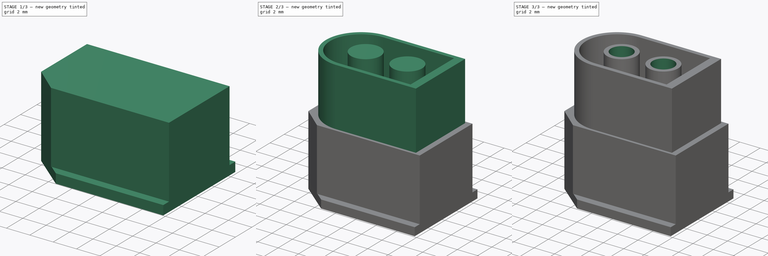
[diagram: build sequence overview — one tinted view per stage of 3, left to right]
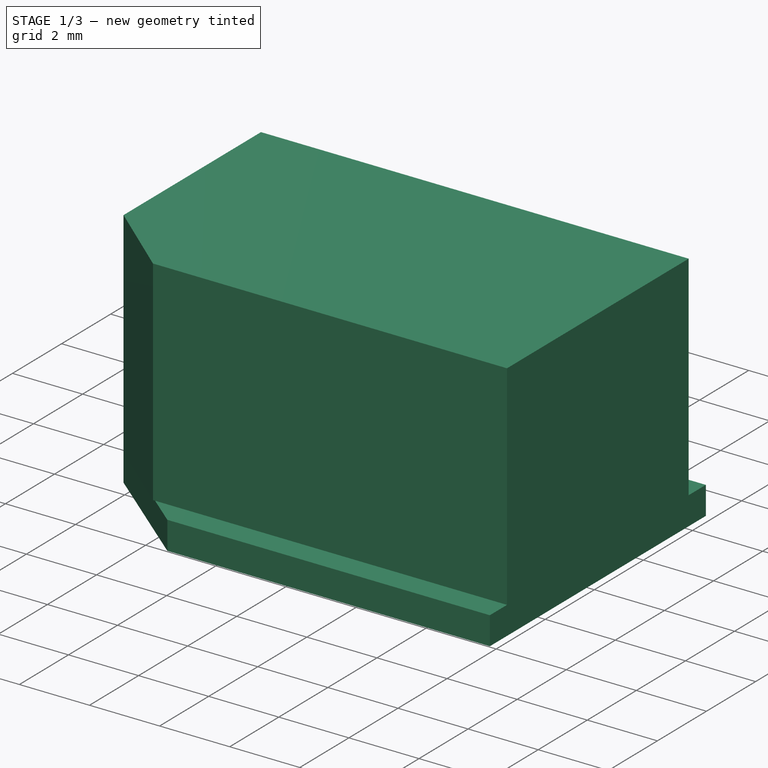
[diagram: stage 1 of 3 — iso view after this stage's code; geometry added in this stage tinted green]
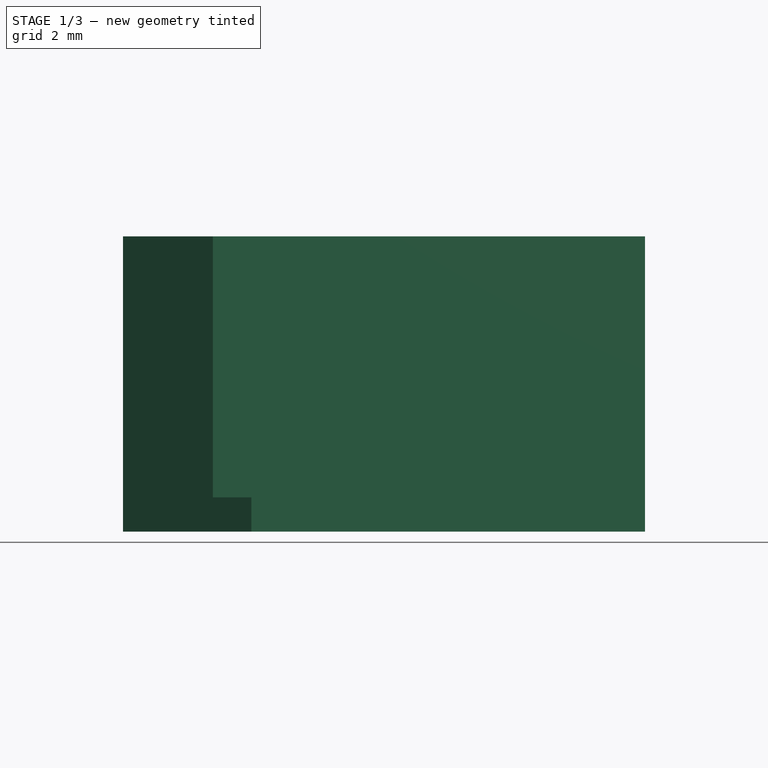
[diagram: stage 1 of 3 — front view after this stage's code; geometry added in this stage tinted green]
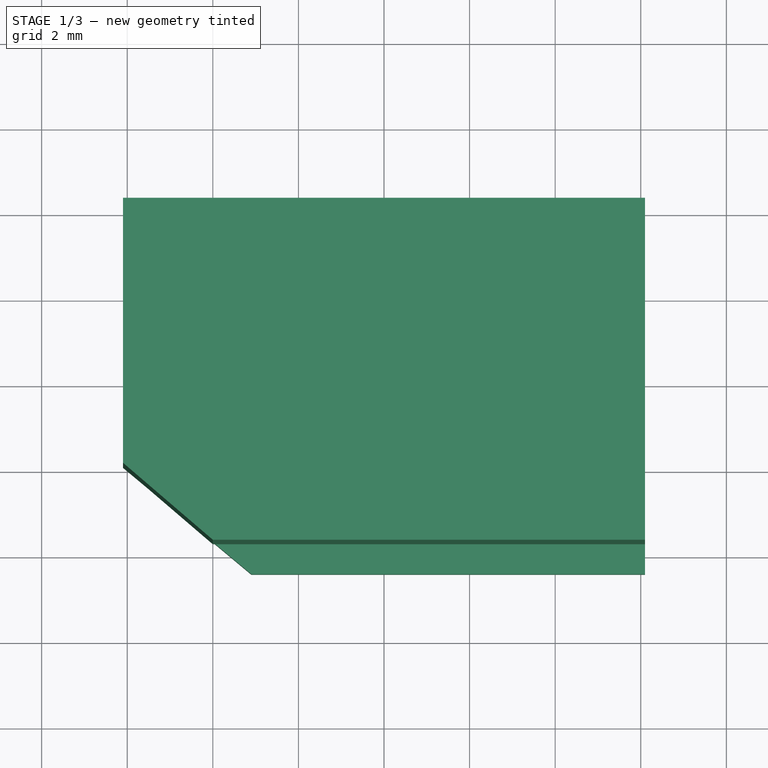
[diagram: stage 1 of 3 — top view after this stage's code; geometry added in this stage tinted green]
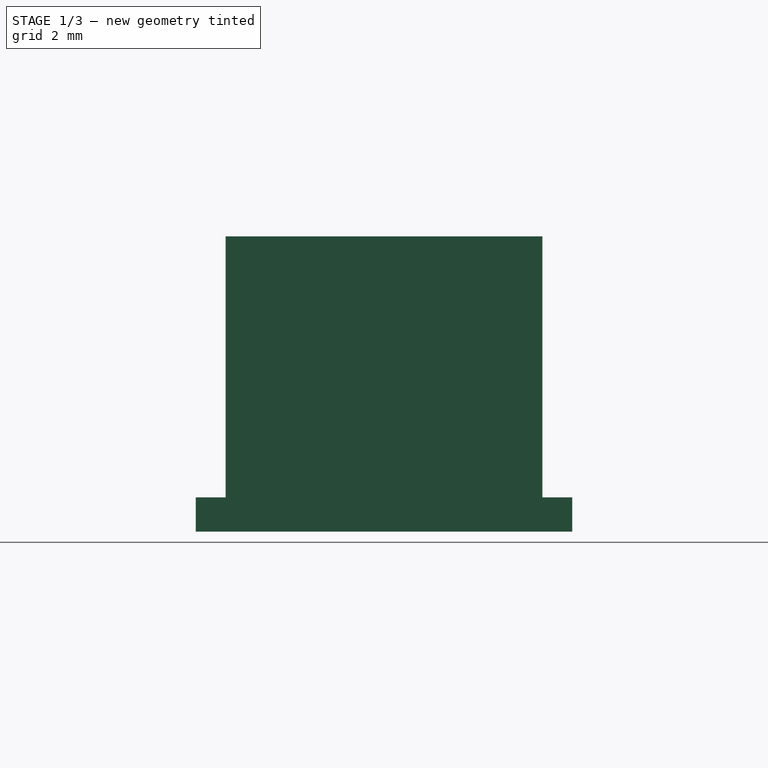
[diagram: stage 1 of 3 — right view after this stage's code; geometry added in this stage tinted green]
FCSTD DOCUMENT  (FreeCAD 2022.1128R26244 +5318 (Git))
Label: Wii2GC
License: All rights reserved
LicenseURL: http://en.wikipedia.org/wiki/All_rights_reserved
objects: Sketcher::SketchObject×8, PartDesign::SubShapeBinder×6, PartDesign::Pad×4, PartDesign::Pocket×3, Spreadsheet::Sheet×1, PartDesign::Body×1
note: 44 computed .brp shape members not serialized (recipe doc carries the construction recipe); baked Part::Feature solids carry a one-line shape summary decoded from their .brp

FEATURE [Spreadsheet::Sheet] Spreadsheet  label="Dimensions"
  PythonMode = false
  ShowCells = 0
  TreeRank = 1
  cells = A1=Base (Lock); B1=Dimensions; C1=Used?; A2=Top; B2(basetop)=12.2; C2=Yes; A3=Bottom; B3(basebottom)=9.199999999999999; C3=Yes; A4=Left; B4(baseleft)=6.3; C4=Yes; A5=Right; B5(baseright)=8.800000000000001; C5=Yes; A6=Height; B6(baseheight)=0.8; C6=Yes; A7=Circle; B7(basecircle)=4.3; C7=Yes; A8=Square; B8(basesquare)=2.5; C8=Yes; A9=Socket Height; B9(basesocketheight)=0; C9=No; A10=Body (Wii); A11=Top; B11(bodytop)=12.2; C11=Yes; A12=Bottom; B12(bodybottom)=10.1; C12=Yes; A13=Left; B13(bodyleft)=5.6; C13=Yes; A14=Right; B14(bodyright)=7.4; C14=Yes; A15=Height; B15(bodyheight)=6.1; C15=Yes; A16=Plug (GameCube); A17=Outside Lenght; B17(plugoutsidelenght)=11.1; C17=Yes; A18=Inside Lenght; B18(pluginsidelenght)=9.5; C18=Yes; A19=Outside Width; B19(plugoutsidewidth)=6.9; C19=Yes; A20=Inside Width; B20(pluginsidewidth)=6.1; C20=Yes; A21=Outside Straight; B21(plugoutsidestraight)=7.8; C21=Yes; A22=Inside Straight; B22(pluginsidestraight)=7; C22=Yes; A23=Circle Distance; B23(plugcircledistance)=1; C23=Yes; A24=Outside Circle; B24(plugoutsidecircle)=2.9; C24=Yes; A25=Inside Circle; B25(pluginsidecircle)=2.1; C25=Yes; A26=Circle Gap; B26(plugcirclegap)=1.2; C26=Yes; A27=Height; B27(plugheight)=5.7; C27=Yes
FEATURE [Sketcher::SketchObject] Sketch
  ArcFitTolerance = 1e-06
  ExternalBSplineMaxDegree = 5
  ExternalBSplineTolerance = 0.0001
  FullyConstrained = true
  InternalTolerance = 1e-06
  MakeInternals = false
  TreeRank = 2
  expr: Placement.Base.z = <<Dimensions>>.basesocketheight
  expr: Constraints[10] = <<Dimensions>>.basebottom
  expr: Constraints[11] = <<Dimensions>>.basetop / 2
  expr: Constraints[12] = <<Dimensions>>.baseright / 2
  expr: Constraints[7] = <<Dimensions>>.basetop
  expr: Constraints[8] = <<Dimensions>>.baseright
  expr: Constraints[9] = <<Dimensions>>.baseleft
  sketch-geometry (5):
    g0: LineSegment StartX=-6.1 StartY=4.4 StartZ=0 EndX=6.1 EndY=4.4 EndZ=0
    g1: LineSegment StartX=6.1 StartY=4.4 StartZ=0 EndX=6.1 EndY=-4.4 EndZ=0
    g2: LineSegment StartX=6.1 StartY=-4.4 StartZ=0 EndX=-3.1 EndY=-4.4 EndZ=0
    g3: LineSegment StartX=-6.1 StartY=4.4 StartZ=0 EndX=-6.1 EndY=-1.9 EndZ=0
    g4: LineSegment StartX=-3.1 StartY=-4.4 StartZ=0 EndX=-6.1 EndY=-1.9 EndZ=0
  constraints (15):
    c: Horizontal(g0)
    c: Vertical(g1)
    c: Horizontal(g2)
    c: Vertical(g3)
    c: Coincident(g3,g0)
    c: Coincident(g1,g0)
    c: Coincident(g2,g1)
    c: DistanceX(g0,g0) = 12.2
    c: DistanceY(g1,g1) = 8.8
    c: DistanceY(g3,g3) = 6.3
    c: DistanceX(g2,g2) = 9.2
    c: DistanceX(g-1,g0) = 6.1
    c: DistanceY(g1,g-1) = 4.4
    c: Coincident(g4,g3)
    c: Coincident(g4,g2)
FEATURE [PartDesign::Pad] Pad  label="Base(Lock)"
  AddSubType = 0
  AlongSketchNormal = false
  AutoTaperInnerAngle = true
  CheckUpToFaceLimits = true
  ClaimChildren = false
  Direction = (0,0,1)
  Fit = 0
  FitJoin = 0
  InnerFit = 0
  InnerFitJoin = 0
  Length = 0.8
  Length2 = 100
  Linearize = true
  NewSolid = false
  Profile = -> Sketch
  Refine = true
  Suppress = false
  TaperInnerAngle = 0
  TaperInnerAngleRev = 0
  TreeRank = 13
  Type = 0
  _ProfileBasedVersion = 1
  expr: Length = <<Dimensions>>.baseheight
FEATURE [Sketcher::SketchObject] Sketch001  label="Body(Wii) Sketch"
  ArcFitTolerance = 1e-06
  ExternalBSplineMaxDegree = 5
  ExternalBSplineTolerance = 0.0001
  FullyConstrained = true
  InternalTolerance = 1e-06
  MakeInternals = false
  Placement = pos=(0,0,0.8) rot=(0,0,1;0rad)
  TreeRank = 14
  expr: Placement.Base.z = <<Dimensions>>.baseheight + <<Dimensions>>.basesocketheight
  expr: Constraints[10] = <<Dimensions>>.bodyleft
  expr: Constraints[11] = <<Dimensions>>.bodytop / 2
  expr: Constraints[12] = <<Dimensions>>.bodyright / 2
  expr: Constraints[7] = <<Dimensions>>.bodytop
  expr: Constraints[8] = <<Dimensions>>.bodybottom
  expr: Constraints[9] = <<Dimensions>>.bodyright
  sketch-geometry (5):
    g0: LineSegment StartX=6.1 StartY=3.7 StartZ=0 EndX=-6.1 EndY=3.7 EndZ=0
    g1: LineSegment StartX=6.1 StartY=3.7 StartZ=0 EndX=6.1 EndY=-3.7 EndZ=0
    g2: LineSegment StartX=6.1 StartY=-3.7 StartZ=0 EndX=-4 EndY=-3.7 EndZ=0
    g3: LineSegment StartX=-6.1 StartY=3.7 StartZ=0 EndX=-6.1 EndY=-1.9 EndZ=0
    g4: LineSegment StartX=-4 StartY=-3.7 StartZ=0 EndX=-6.1 EndY=-1.9 EndZ=0
  constraints (15):
    c: Horizontal(g0)
    c: Vertical(g1)
    c: Horizontal(g2)
    c: Vertical(g3)
    c: Coincident(g1,g0)
    c: Coincident(g2,g1)
    c: Coincident(g3,g0)
    c: DistanceX(g0,g0) = 12.2
    c: DistanceX(g2,g2) = 10.1
    c: DistanceY(g1,g1) = 7.4
    c: DistanceY(g3,g3) = 5.6
    c: DistanceX(g-1,g0) = 6.1
    c: DistanceY(g1,g-1) = 3.7
    c: Coincident(g4,g2)
    c: Coincident(g4,g3)
FEATURE [PartDesign::SubShapeBinder] Pad001_Profile  label="Pad001_Profile(Body(Wii) Sketch)"
  BindCopyOnChange = 0
  BindMode = 0
  ClaimChildren = false
  Context = -> Body [Pad001.Pad001_Profile.]
  EdgeTolerance = 1e-06
  FillStyle = 0
  Fuse = false
  MakeFace = true
  MergeEdges = true
  OffsetFill = false
  OffsetIntersection = false
  OffsetJoinType = 0
  OffsetOpenResult = false
  Outline = false
  PartialLoad = false
  Relative = true
  SplitEdges = false
  Support = -> [Sketch001]
  TightBound = false
  TreeRank = 16
  _Version = 8
FEATURE [PartDesign::Pad] Pad001  label="Body(Wii)"
  AddSubType = 0
  AlongSketchNormal = false
  AutoTaperInnerAngle = true
  BaseFeature = -> Pad
  CheckUpToFaceLimits = true
  ClaimChildren = false
  Direction = (0,0,1)
  Fit = 0
  FitJoin = 0
  InnerFit = 0
  InnerFitJoin = 0
  Length = 6.1
  Length2 = 100
  Linearize = true
  NewSolid = false
  Profile = -> Pad001_Profile
  Refine = true
  Suppress = false
  TaperInnerAngle = 0
  TaperInnerAngleRev = 0
  TreeRank = 15
  Type = 0
  _ProfileBasedVersion = 1
  expr: Length = <<Dimensions>>.bodyheight
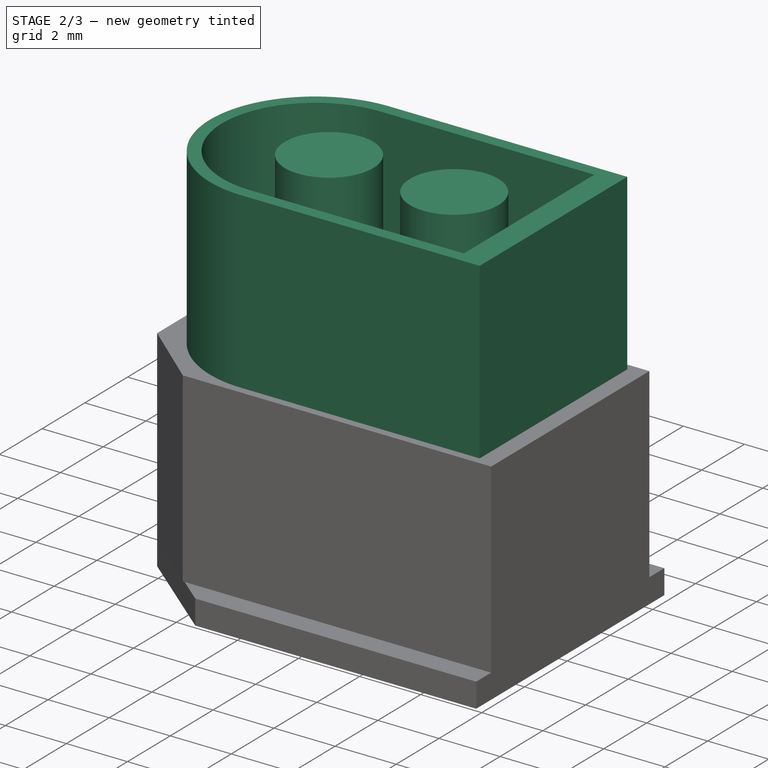
[diagram: stage 2 of 3 — iso view after this stage's code; geometry added in this stage tinted green]
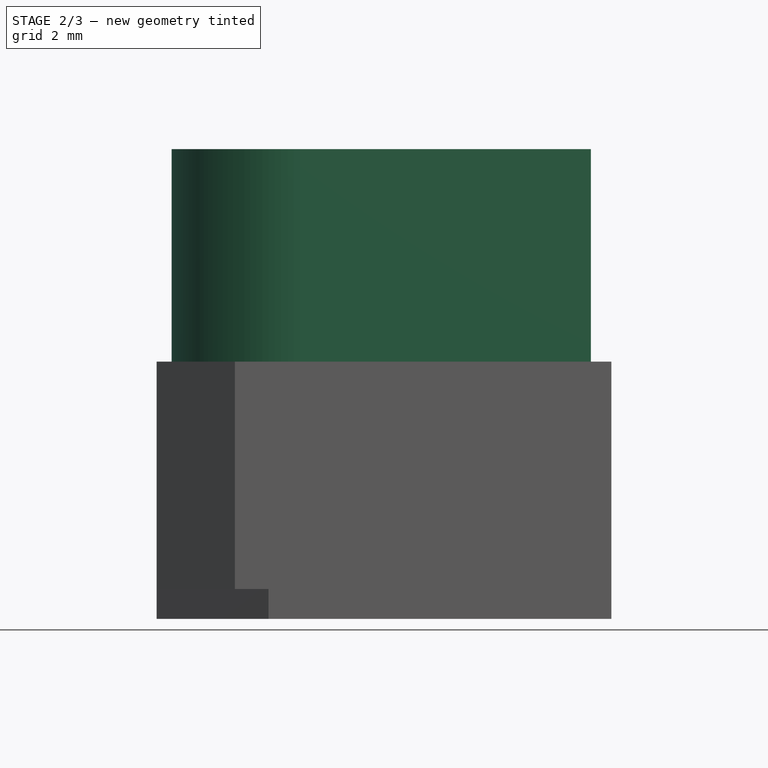
[diagram: stage 2 of 3 — front view after this stage's code; geometry added in this stage tinted green]
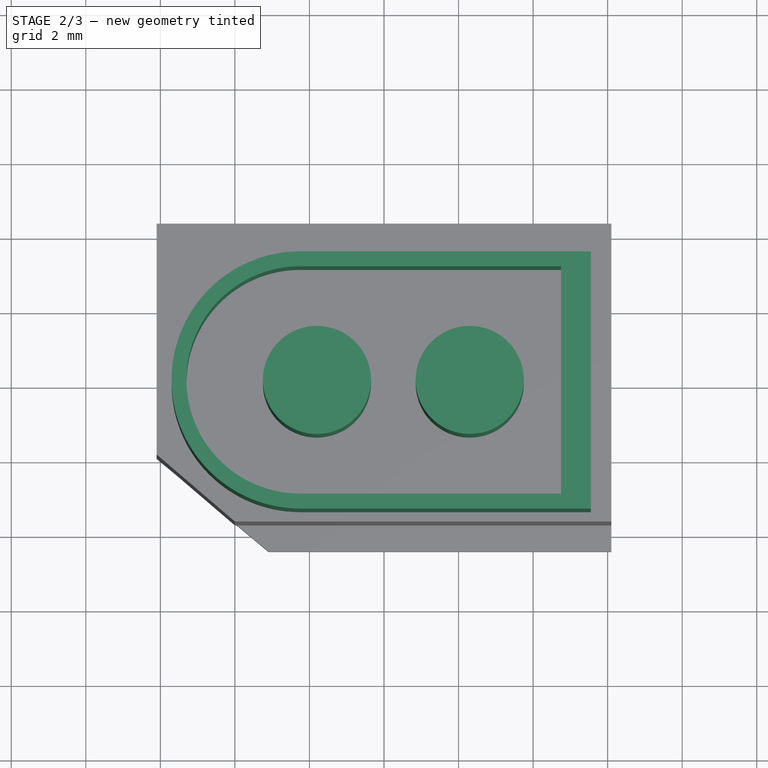
[diagram: stage 2 of 3 — top view after this stage's code; geometry added in this stage tinted green]
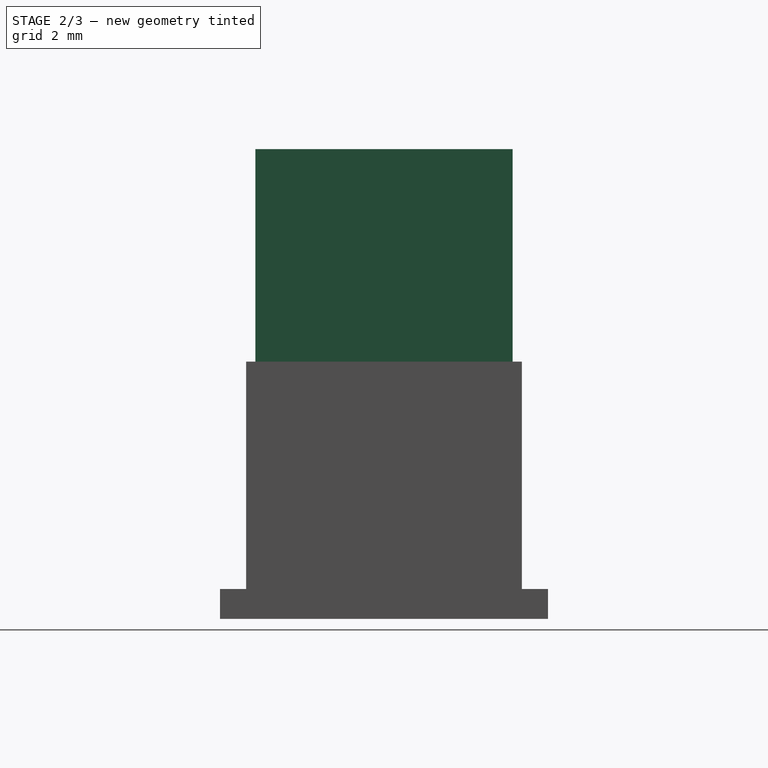
[diagram: stage 2 of 3 — right view after this stage's code; geometry added in this stage tinted green]
FEATURE [Sketcher::SketchObject] Sketch002  label="Plug(GameCube) Sketch"
  ArcFitTolerance = 1e-06
  ExternalBSplineMaxDegree = 5
  ExternalBSplineTolerance = 0.0001
  FullyConstrained = true
  InternalTolerance = 1e-06
  MakeInternals = false
  Placement = pos=(0,0,6.9) rot=(0,0,1;0rad)
  TreeRank = 17
  expr: Placement.Base.z = <<Dimensions>>.baseheight + <<Dimensions>>.bodyheight + <<Dimensions>>.basesocketheight
  expr: Constraints[12] = <<Dimensions>>.plugoutsidestraight - <<Dimensions>>.plugoutsidelenght / 2
  expr: Constraints[5] = <<Dimensions>>.plugoutsidestraight
  expr: Constraints[6] = <<Dimensions>>.plugoutsidestraight
  expr: Constraints[7] = <<Dimensions>>.plugoutsidewidth
  expr: Constraints[8] = <<Dimensions>>.plugoutsidewidth / 2
  expr: Constraints[9] = <<Dimensions>>.plugoutsidelenght / 2
  sketch-geometry (4):
    g0: LineSegment StartX=-2.25 StartY=3.45 StartZ=0 EndX=5.55 EndY=3.45 EndZ=0
    g1: LineSegment StartX=5.55 StartY=3.45 StartZ=0 EndX=5.55 EndY=-3.45 EndZ=0
    g2: LineSegment StartX=5.55 StartY=-3.45 StartZ=0 EndX=-2.25 EndY=-3.45 EndZ=0
    g3: ArcOfCircle CenterX=-2.25 CenterY=0 CenterZ=0 NormalX=0 NormalY=0 NormalZ=1 AngleXU=0 Radius=3.45 StartAngle=1.5708 EndAngle=4.71239
  constraints (13):
    c: Horizontal(g0)
    c: Vertical(g1)
    c: Horizontal(g2)
    c: Coincident(g2,g1)
    c: Coincident(g0,g1)
    c: DistanceX(g0,g0) = 7.8
    c: DistanceX(g2,g2) = 7.8
    c: DistanceY(g1,g1) = 6.9
    c: DistanceY(g1,g-1) = 3.45
    c: DistanceX(g-1,g0) = 5.55
    c: Coincident(g3,g2)
    c: Coincident(g3,g0)
    c: DistanceX(g3,g-1) = 2.25
FEATURE [PartDesign::SubShapeBinder] Pad002_Profile  label="Pad002_Profile(Plug(GameCube) Sketch)"
  BindCopyOnChange = 0
  BindMode = 0
  ClaimChildren = false
  Context = -> Body [Pad002_Profile.]
  EdgeTolerance = 1e-06
  FillStyle = 0
  Fuse = false
  MakeFace = true
  MergeEdges = true
  OffsetFill = false
  OffsetIntersection = false
  OffsetJoinType = 0
  OffsetOpenResult = false
  Outline = false
  PartialLoad = false
  Relative = true
  SplitEdges = false
  Support = -> [Sketch002]
  TightBound = false
  TreeRank = 19
  _Version = 8
FEATURE [PartDesign::Pad] Pad002  label="Plug (GameCube)"
  AddSubType = 0
  AlongSketchNormal = false
  AutoTaperInnerAngle = true
  BaseFeature = -> Pad001
  CheckUpToFaceLimits = true
  ClaimChildren = false
  Direction = (0,0,1)
  Fit = 0
  FitJoin = 0
  InnerFit = 0
  InnerFitJoin = 0
  Length = 5.7
  Length2 = 100
  Linearize = true
  NewSolid = false
  Profile = -> Pad002_Profile
  Refine = true
  Suppress = false
  TaperInnerAngle = 0
  TaperInnerAngleRev = 0
  TreeRank = 18
  Type = 0
  _ProfileBasedVersion = 1
  expr: Length = <<Dimensions>>.plugheight
FEATURE [Sketcher::SketchObject] Sketch003  label="Plug Hole Sketch"
  ArcFitTolerance = 1e-06
  ExternalBSplineMaxDegree = 5
  ExternalBSplineTolerance = 0.0001
  FullyConstrained = true
  InternalTolerance = 1e-06
  MakeInternals = false
  Placement = pos=(0,0,12.6) rot=(0,0,1;0rad)
  TreeRank = 20
  expr: Placement.Base.z = <<Dimensions>>.basesocketheight + <<Dimensions>>.baseheight + <<Dimensions>>.bodyheight + <<Dimensions>>.plugheight
  expr: Constraints[5] = <<Dimensions>>.pluginsidestraight
  expr: Constraints[6] = <<Dimensions>>.pluginsidestraight
  expr: Constraints[7] = <<Dimensions>>.pluginsidewidth
  expr: Constraints[8] = <<Dimensions>>.pluginsidewidth / 2
  expr: Constraints[9] = <<Dimensions>>.pluginsidelenght / 2
  sketch-geometry (4):
    g0: LineSegment StartX=-2.25 StartY=3.05 StartZ=0 EndX=4.75 EndY=3.05 EndZ=0
    g1: LineSegment StartX=4.75 StartY=3.05 StartZ=0 EndX=4.75 EndY=-3.05 EndZ=0
    g2: LineSegment StartX=4.75 StartY=-3.05 StartZ=0 EndX=-2.25 EndY=-3.05 EndZ=0
    g3: ArcOfCircle CenterX=-2.25 CenterY=-1e-16 CenterZ=0 NormalX=0 NormalY=0 NormalZ=1 AngleXU=0 Radius=3.05 StartAngle=1.5708 EndAngle=4.71239
  constraints (13):
    c: Horizontal(g0)
    c: Vertical(g1)
    c: Horizontal(g2)
    c: Coincident(g0,g1)
    c: Coincident(g2,g1)
    c: DistanceX(g0,g0) = 7
    c: DistanceX(g2,g2) = 7
    c: DistanceY(g1,g1) = 6.1
    c: DistanceY(g-1,g0) = 3.05
    c: DistanceX(g-1,g0) = 4.75
    c: Coincident(g3,g2)
    c: Coincident(g3,g0)
    c: DistanceX(g3,g-1) = 2.25
FEATURE [PartDesign::SubShapeBinder] Pocket_Profile  label="Pocket_Profile(Plug Hole Sketch)"
  BindCopyOnChange = 0
  BindMode = 0
  ClaimChildren = false
  Context = -> Body [Pocket_Profile.]
  EdgeTolerance = 1e-06
  FillStyle = 0
  Fuse = false
  MakeFace = true
  MergeEdges = true
  OffsetFill = false
  OffsetIntersection = false
  OffsetJoinType = 0
  OffsetOpenResult = false
  Outline = false
  PartialLoad = false
  Relative = true
  SplitEdges = false
  Support = -> [Sketch003]
  TightBound = false
  TreeRank = 22
  _Version = 8
FEATURE [PartDesign::Pocket] Pocket  label="Plug Hole"
  AddSubType = 1
  AutoTaperInnerAngle = true
  BaseFeature = -> Pad002
  CheckUpToFaceLimits = true
  ClaimChildren = false
  Fit = 0
  FitJoin = 0
  InnerFit = 0
  InnerFitJoin = 0
  Length = 5.7
  Length2 = 100
  Linearize = true
  NewSolid = false
  Profile = -> Pocket_Profile
  Refine = true
  Suppress = false
  TaperInnerAngle = 0
  TaperInnerAngleRev = 0
  TreeRank = 21
  Type = 0
  _ProfileBasedVersion = 1
  _Version = 1
  expr: Length = <<Dimensions>>.plugheight
FEATURE [Sketcher::SketchObject] Sketch004  label="Plug Sockets Sketch"
  ArcFitTolerance = 1e-06
  ExternalBSplineMaxDegree = 5
  ExternalBSplineTolerance = 0.0001
  FullyConstrained = true
  InternalTolerance = 1e-06
  MakeInternals = false
  Placement = pos=(0,0,6.9) rot=(0,0,1;0rad)
  TreeRank = 23
  expr: Placement.Base.z = <<Dimensions>>.baseheight + <<Dimensions>>.bodyheight + <<Dimensions>>.basesocketheight
  expr: Constraints[1] = <<Dimensions>>.pluginsidelenght / 2
  expr: Constraints[3] = <<Dimensions>>.plugcircledistance + <<Dimensions>>.plugoutsidecircle / 2
  expr: Constraints[4] = <<Dimensions>>.plugoutsidecircle
  expr: Constraints[5] = <<Dimensions>>.plugoutsidecircle
  expr: Constraints[6] = <<Dimensions>>.plugoutsidecircle + <<Dimensions>>.plugcirclegap
  sketch-geometry (3):
    g0: GeomPoint [constr] X=4.75 Y=0 Z=0
    g1: Circle CenterX=2.3 CenterY=0 CenterZ=0 NormalX=0 NormalY=0 NormalZ=1 AngleXU=0 Radius=1.45
    g2: Circle CenterX=-1.8 CenterY=0 CenterZ=0 NormalX=0 NormalY=0 NormalZ=1 AngleXU=0 Radius=1.45
  constraints (8):
    c: Horizontal(g-1,g0)
    c: DistanceX(g-1,g0) = 4.75
    c: Horizontal(g1,g-1)
    c: DistanceX(g1,g0) = 2.45
    c: Diameter(g1) = 2.9
    c: Diameter(g2) = 2.9
    c: DistanceX(g2,g1) = 4.1
    c: Horizontal(g2,g-1)
FEATURE [PartDesign::SubShapeBinder] Pad003_Profile  label="Pad003_Profile(Plug Sockets Sketch)"
  BindCopyOnChange = 0
  BindMode = 0
  ClaimChildren = false
  Context = -> Body [Pad003_Profile.]
  EdgeTolerance = 1e-06
  FillStyle = 0
  Fuse = false
  MakeFace = true
  MergeEdges = true
  OffsetFill = false
  OffsetIntersection = false
  OffsetJoinType = 0
  OffsetOpenResult = false
  Outline = false
  PartialLoad = false
  Relative = true
  SplitEdges = false
  Support = -> [Sketch004]
  TightBound = false
  TreeRank = 25
  _Version = 8
FEATURE [PartDesign::Pad] Pad003  label="Plug Sockets"
  AddSubType = 0
  AlongSketchNormal = false
  AutoTaperInnerAngle = true
  BaseFeature = -> Pocket
  CheckUpToFaceLimits = true
  ClaimChildren = false
  Direction = (0,0,1)
  Fit = 0
  FitJoin = 0
  InnerFit = 0
  InnerFitJoin = 0
  Length = 5.7
  Length2 = 100
  Linearize = true
  NewSolid = false
  Profile = -> Pad003_Profile
  Refine = true
  Suppress = false
  TaperInnerAngle = 0
  TaperInnerAngleRev = 0
  TreeRank = 24
  Type = 0
  _ProfileBasedVersion = 1
  expr: Length = <<Dimensions>>.plugheight
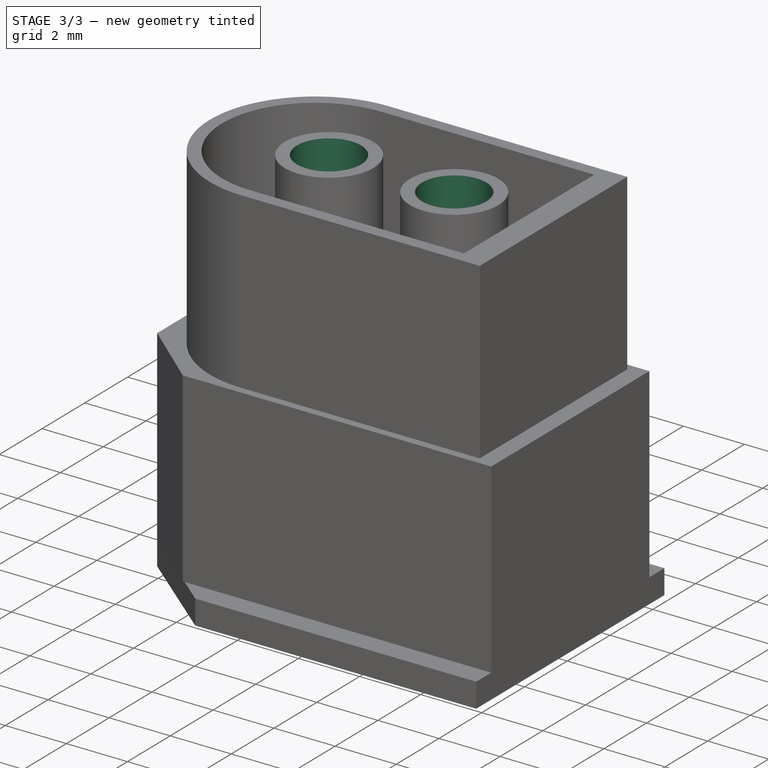
[diagram: stage 3 of 3 — iso view after this stage's code; geometry added in this stage tinted green]
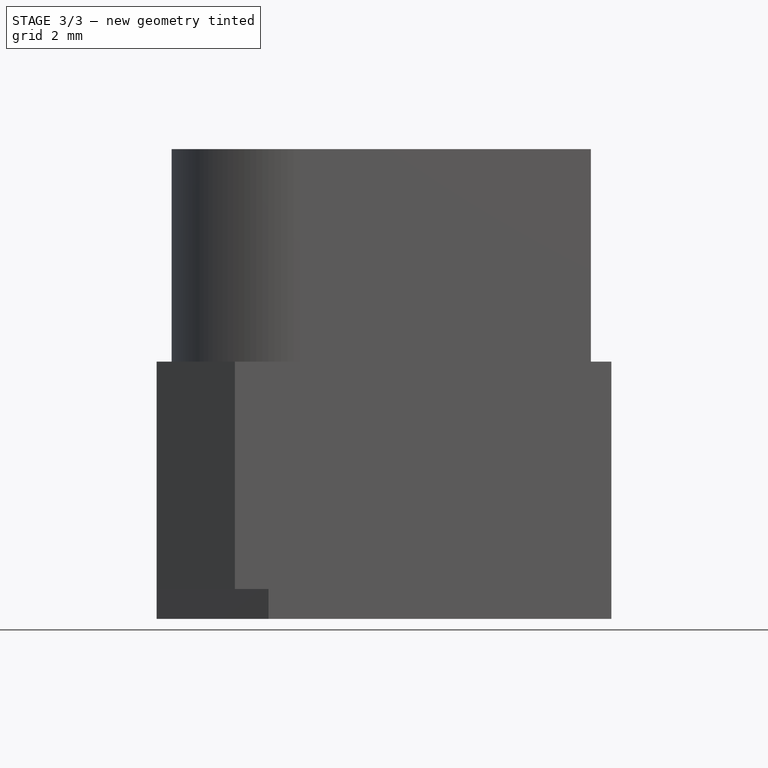
[diagram: stage 3 of 3 — front view after this stage's code; geometry added in this stage tinted green]
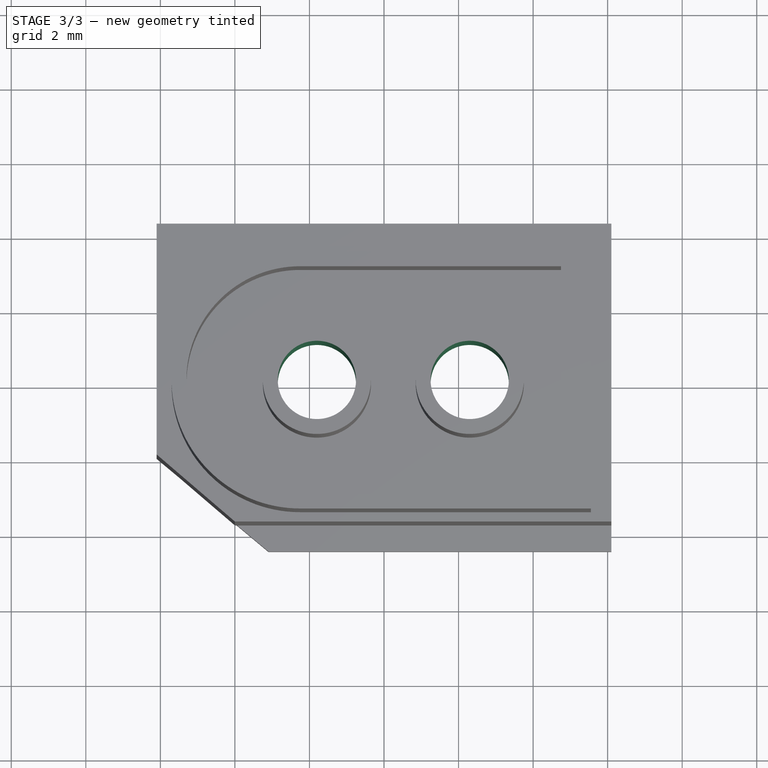
[diagram: stage 3 of 3 — top view after this stage's code; geometry added in this stage tinted green]
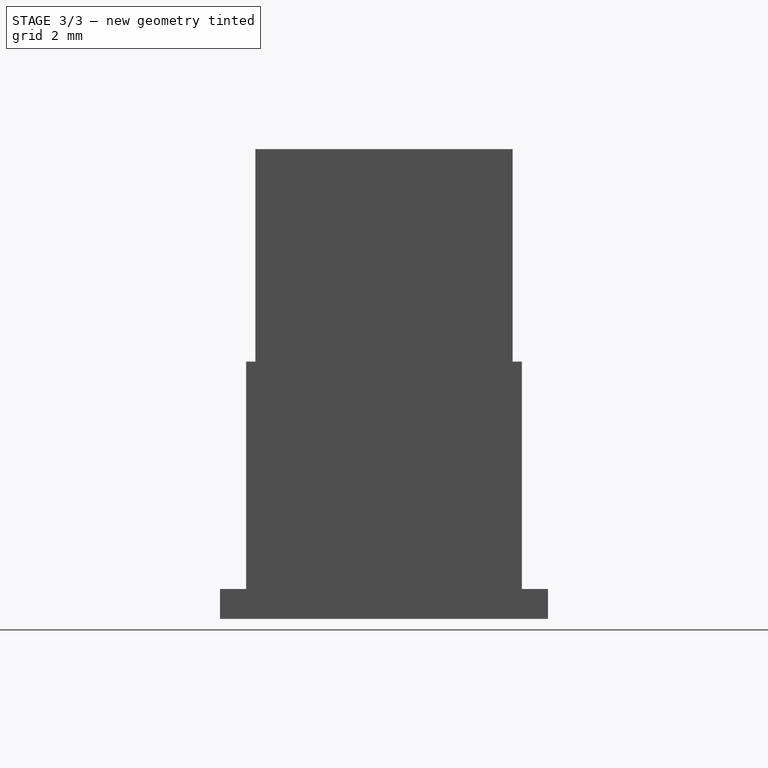
[diagram: stage 3 of 3 — right view after this stage's code; geometry added in this stage tinted green]
FEATURE [Sketcher::SketchObject] Sketch005  label="Plug Holes Sketch"
  ArcFitTolerance = 1e-06
  ExternalBSplineMaxDegree = 5
  ExternalBSplineTolerance = 0.0001
  FullyConstrained = true
  InternalTolerance = 1e-06
  MakeInternals = false
  Placement = pos=(0,0,12.6) rot=(0,0,1;0rad)
  TreeRank = 26
  expr: Placement.Base.z = <<Dimensions>>.baseheight + <<Dimensions>>.bodyheight + <<Dimensions>>.plugheight + <<Dimensions>>.basesocketheight
  expr: Constraints[3] = <<Dimensions>>.pluginsidelenght / 2
  expr: Constraints[4] = <<Dimensions>>.pluginsidecircle
  expr: Constraints[5] = <<Dimensions>>.pluginsidecircle
  expr: Constraints[6] = <<Dimensions>>.plugcircledistance + <<Dimensions>>.plugoutsidecircle / 2
  expr: Constraints[7] = <<Dimensions>>.plugoutsidecircle + <<Dimensions>>.plugcirclegap
  sketch-geometry (3):
    g0: Circle CenterX=-1.8 CenterY=0 CenterZ=0 NormalX=0 NormalY=0 NormalZ=1 AngleXU=0 Radius=1.05
    g1: Circle CenterX=2.3 CenterY=0 CenterZ=0 NormalX=0 NormalY=0 NormalZ=1 AngleXU=0 Radius=1.05
    g2: GeomPoint [constr] X=4.75 Y=0 Z=0
  constraints (8):
    c: Horizontal(g-1,g2)
    c: Horizontal(g1,g-1)
    c: Horizontal(g0,g-1)
    c: DistanceX(g-1,g2) = 4.75
    c: Diameter(g1) = 2.1
    c: Diameter(g0) = 2.1
    c: DistanceX(g1,g2) = 2.45
    c: DistanceX(g0,g1) = 4.1
FEATURE [PartDesign::SubShapeBinder] Pocket001_Profile  label="Pocket001_Profile(Plug Holes Sketch)"
  BindCopyOnChange = 0
  BindMode = 0
  ClaimChildren = false
  Context = -> Body [Pocket001_Profile.]
  EdgeTolerance = 1e-06
  FillStyle = 0
  Fuse = false
  MakeFace = true
  MergeEdges = true
  OffsetFill = false
  OffsetIntersection = false
  OffsetJoinType = 0
  OffsetOpenResult = false
  Outline = false
  PartialLoad = false
  Relative = true
  SplitEdges = false
  Support = -> [Sketch005]
  TightBound = false
  TreeRank = 28
  _Version = 8
FEATURE [PartDesign::Pocket] Pocket001  label="Plug Holes"
  AddSubType = 1
  AutoTaperInnerAngle = true
  BaseFeature = -> Pad003
  CheckUpToFaceLimits = true
  ClaimChildren = false
  Fit = 0
  FitJoin = 0
  InnerFit = 0
  InnerFitJoin = 0
  Length = 12.6
  Length2 = 100
  Linearize = true
  NewSolid = false
  Profile = -> Pocket001_Profile
  Refine = true
  Suppress = false
  TaperInnerAngle = 0
  TaperInnerAngleRev = 0
  TreeRank = 27
  Type = 0
  _ProfileBasedVersion = 1
  _Version = 1
  expr: Length = <<Dimensions>>.baseheight + <<Dimensions>>.bodyheight + <<Dimensions>>.plugheight
FEATURE [Sketcher::SketchObject] Sketch006  label="Base Hole Sketch"
  ArcFitTolerance = 1e-06
  ExternalBSplineMaxDegree = 5
  ExternalBSplineTolerance = 0.0001
  FullyConstrained = true
  InternalTolerance = 1e-06
  MakeInternals = false
  Placement = pos=(0,0,6.1) rot=(0,0,1;0rad)
  TreeRank = 30
  expr: Placement.Base.z = <<Dimensions>>.bodyheight + <<Dimensions>>.basesocketheight
  expr: Constraints[26] = <<Dimensions>>.basesquare
  expr: Constraints[27] = <<Dimensions>>.basesquare
  expr: Constraints[28] = <<Dimensions>>.basesquare
  expr: Constraints[29] = <<Dimensions>>.basesquare
  expr: Constraints[3] = <<Dimensions>>.pluginsidelenght / 2
  expr: Constraints[4] = <<Dimensions>>.plugcircledistance + <<Dimensions>>.plugoutsidecircle / 2
  expr: Constraints[5] = <<Dimensions>>.plugcirclegap + <<Dimensions>>.plugoutsidecircle
  sketch-geometry (13):
    g0: GeomPoint [constr] X=-1.8 Y=0 Z=0
    g1: GeomPoint [constr] X=2.3 Y=0 Z=0
    g2: GeomPoint [constr] X=4.75 Y=0 Z=0
    g3: LineSegment StartX=3.55 StartY=-1.25 StartZ=0 EndX=3.55 EndY=1.25 EndZ=0
    g4: LineSegment StartX=3.55 StartY=1.25 StartZ=0 EndX=1.05 EndY=1.25 EndZ=0
    g5: LineSegment StartX=1.05 StartY=1.25 StartZ=0 EndX=1.05 EndY=-1.25 EndZ=0
    g6: LineSegment StartX=1.05 StartY=-1.25 StartZ=0 EndX=3.55 EndY=-1.25 EndZ=0
    g7: GeomPoint [constr] X=2.3 Y=0 Z=0
    g8: LineSegment StartX=-0.55 StartY=-1.25 StartZ=0 EndX=-0.55 EndY=1.25 EndZ=0
    g9: LineSegment StartX=-0.55 StartY=1.25 StartZ=0 EndX=-3.05 EndY=1.25 EndZ=0
    g10: LineSegment StartX=-3.05 StartY=1.25 StartZ=0 EndX=-3.05 EndY=-1.25 EndZ=0
    g11: LineSegment StartX=-3.05 StartY=-1.25 StartZ=0 EndX=-0.55 EndY=-1.25 EndZ=0
    g12: GeomPoint [constr] X=-1.8 Y=0 Z=0
  constraints (30):
    c: Horizontal(g1,g-1)
    c: Horizontal(g0,g-1)
    c: Horizontal(g-1,g2)
    c: DistanceX(g-1,g2) = 4.75
    c: DistanceX(g1,g2) = 2.45
    c: DistanceX(g0,g1) = 4.1
    c: Coincident(g3,g4)
    c: Coincident(g4,g5)
    c: Coincident(g5,g6)
    c: Coincident(g6,g3)
    c: Horizontal(g4)
    c: Horizontal(g6)
    c: Vertical(g3)
    c: Vertical(g5)
    c: Symmetric(g4,g3,g7)
    c: Coincident(g7,g1)
    c: Coincident(g8,g9)
    c: Coincident(g9,g10)
    c: Coincident(g10,g11)
    c: Coincident(g11,g8)
    c: Horizontal(g9)
    c: Horizontal(g11)
    c: Vertical(g8)
    c: Vertical(g10)
    c: Symmetric(g9,g8,g12)
    c: Coincident(g12,g0)
    c: DistanceX(g4,g4) = 2.5
    c: DistanceX(g9,g9) = 2.5
    c: DistanceY(g10,g10) = 2.5
    c: DistanceY(g5,g5) = 2.5
FEATURE [Sketcher::SketchObject] Sketch007  label="Base Sockets Sketch"
  ArcFitTolerance = 1e-06
  ExternalBSplineMaxDegree = 5
  ExternalBSplineTolerance = 0.0001
  FullyConstrained = true
  InternalTolerance = 1e-06
  MakeInternals = false
  TreeRank = 33
  expr: Placement.Base.z = 0
  expr: Constraints[14] = <<Dimensions>>.basecircle / 2
  expr: Constraints[15] = <<Dimensions>>.basecircle / 2
  expr: Constraints[1] = <<Dimensions>>.pluginsidelenght / 2
  expr: Constraints[3] = <<Dimensions>>.plugcircledistance + <<Dimensions>>.plugoutsidecircle / 2
  expr: Constraints[4] = <<Dimensions>>.basecircle
  expr: Constraints[6] = <<Dimensions>>.plugoutsidecircle + <<Dimensions>>.plugcirclegap
  expr: Constraints[7] = <<Dimensions>>.basecircle
  sketch-geometry (5):
    g0: GeomPoint [constr] X=4.75 Y=0 Z=0
    g1: ArcOfCircle CenterX=2.3 CenterY=0 CenterZ=0 NormalX=0 NormalY=0 NormalZ=1 AngleXU=0 Radius=2.15 StartAngle=4.71239 EndAngle=7.85398
    g2: ArcOfCircle CenterX=-1.8 CenterY=0 CenterZ=0 NormalX=0 NormalY=0 NormalZ=1 AngleXU=0 Radius=2.15 StartAngle=1.5708 EndAngle=4.71239
    g3: LineSegment StartX=-1.8 StartY=2.15 StartZ=0 EndX=2.3 EndY=2.15 EndZ=0
    g4: LineSegment StartX=-1.8 StartY=-2.15 StartZ=0 EndX=2.3 EndY=-2.15 EndZ=0
  constraints (16):
    c: Horizontal(g0,g-1)
    c: DistanceX(g-1,g0) = 4.75
    c: Horizontal(g1,g-1)
    c: DistanceX(g1,g0) = 2.45
    c: Diameter(g1) = 4.3
    c: Horizontal(g-1,g2)
    c: DistanceX(g2,g1) = 4.1
    c: Diameter(g2) = 4.3
    c: Coincident(g3,g2)
    c: Coincident(g3,g1)
    c: Horizontal(g3)
    c: Coincident(g4,g2)
    c: Coincident(g4,g1)
    c: Horizontal(g4)
    c: DistanceY(g1,g1) = 2.15
    c: DistanceY(g2,g2) = 2.15
FEATURE [PartDesign::SubShapeBinder] Pocket002_Profile  label="Pocket002_Profile(Base Hole Sketch)"
  BindCopyOnChange = 0
  BindMode = 0
  ClaimChildren = false
  Context = -> Body [Pocket002_Profile.]
  EdgeTolerance = 1e-06
  FillStyle = 0
  Fuse = false
  MakeFace = true
  MergeEdges = true
  OffsetFill = false
  OffsetIntersection = false
  OffsetJoinType = 0
  OffsetOpenResult = false
  Outline = false
  PartialLoad = false
  Relative = true
  SplitEdges = false
  Support = -> [Sketch006]
  TightBound = false
  TreeRank = 45
  _Version = 8
FEATURE [PartDesign::Pocket] Pocket002  label="Base Hole"
  AddSubType = 1
  AutoTaperInnerAngle = true
  BaseFeature = -> Pocket001
  CheckUpToFaceLimits = true
  ClaimChildren = false
  Fit = 0
  FitJoin = 0
  InnerFit = 0
  InnerFitJoin = 0
  Length = 6.1
  Length2 = 100
  Linearize = true
  NewSolid = false
  Profile = -> Pocket002_Profile
  Refine = true
  Suppress = false
  TaperInnerAngle = 0
  TaperInnerAngleRev = 0
  TreeRank = 44
  Type = 0
  _ProfileBasedVersion = 1
  _Version = 1
  expr: Length = <<Dimensions>>.bodyheight + <<Dimensions>>.basesocketheight
FEATURE [PartDesign::Body] Body
  AutoGroupSolids = false
  ClaimAllChildren = false
  ExportMode = 0
  Group = -> [Sketch,Pad,Pad001,Pad001_Profile,Pad002,Pad002_Profile,Pocket,Pocket_Profile,Pad003,Pad003_Profile,Pocket001,Pocket001_Profile,Pocket002,Pocket002_Profile]
  Origin = -> Origin
  Tip = -> Pocket002
  TreeRank = 12
  _ExportChildren = -> [Pad,Pad001,Pad002,Pocket,Pad003,Pocket001,Pocket002]
  _GroupVersion = 1
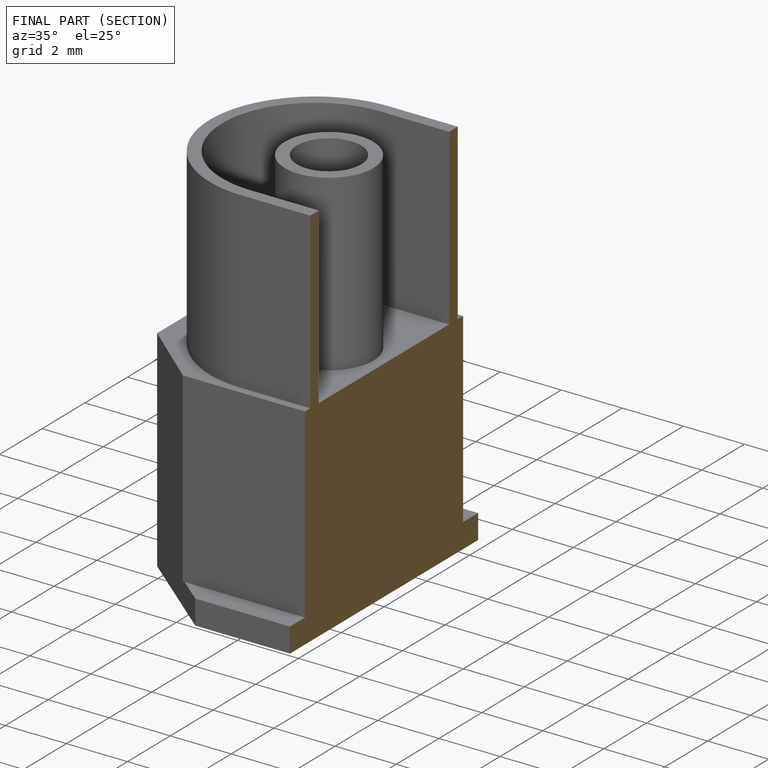
[diagram: finished part — half-section view (interior)]
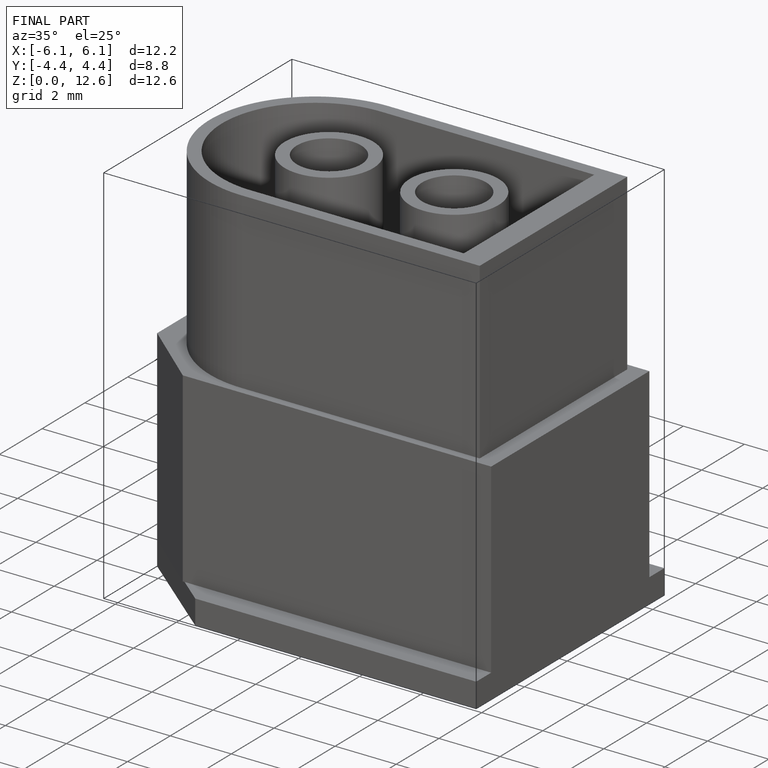
[diagram: finished part — iso view with bounding-box wireframe]
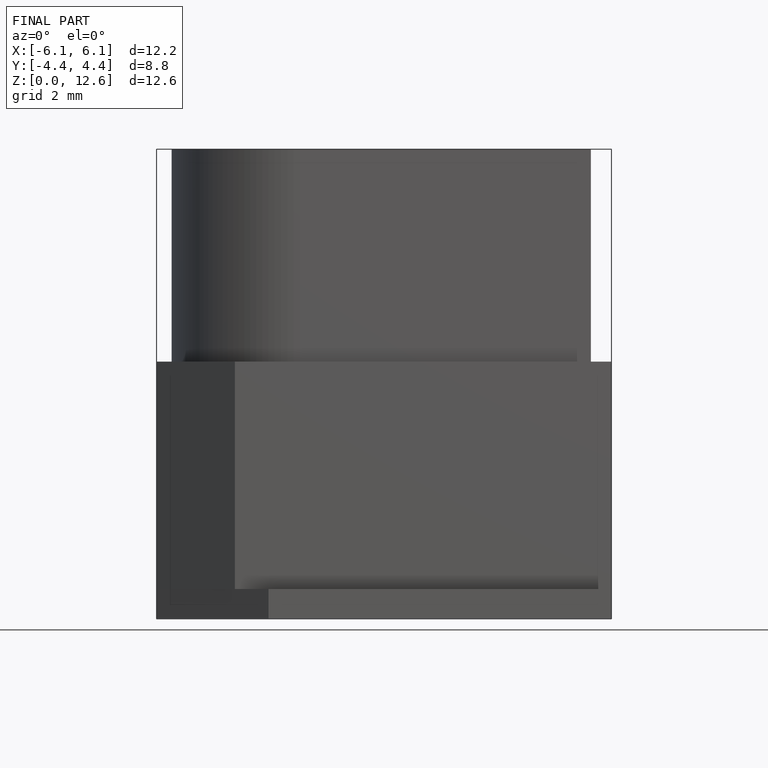
[diagram: finished part — front view with bounding-box wireframe]
